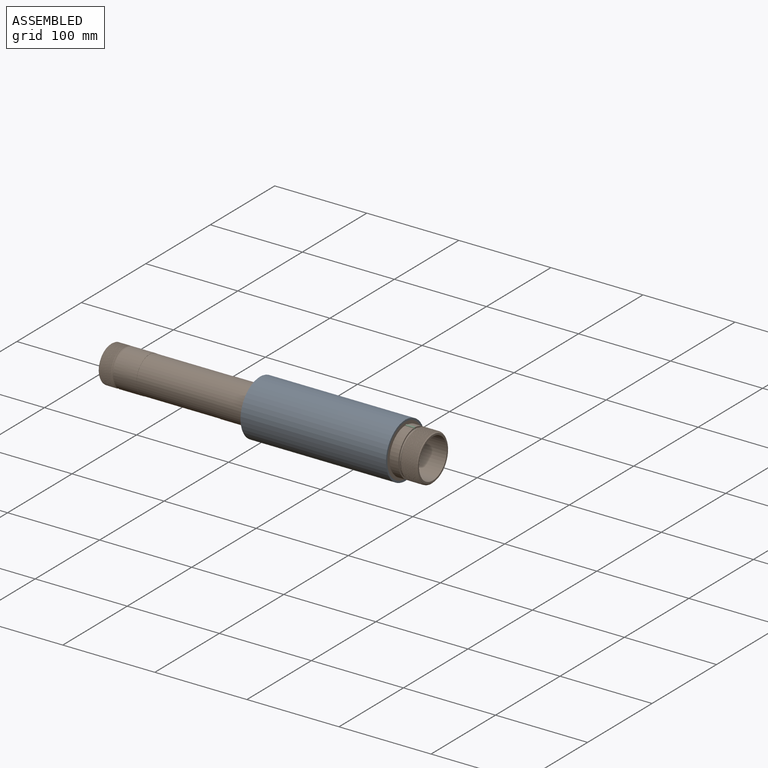
[diagram: assembled view]
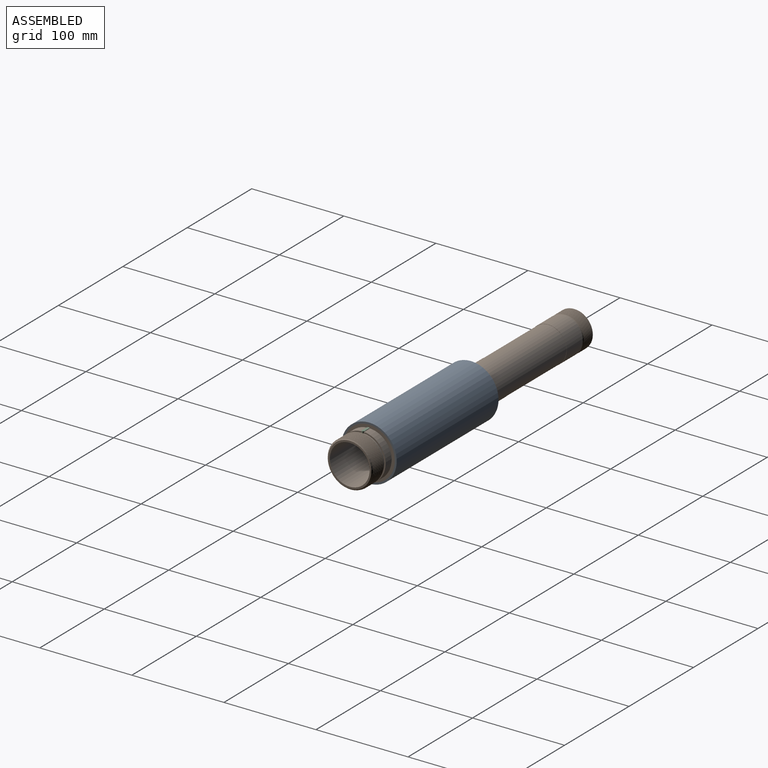
[diagram: assembled view, second angle]
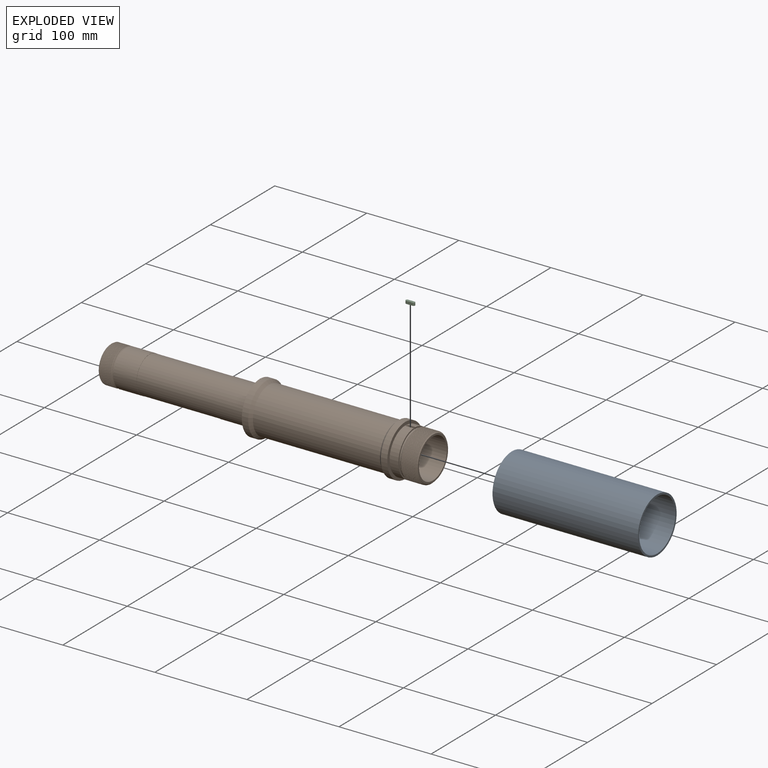
[diagram: exploded view]
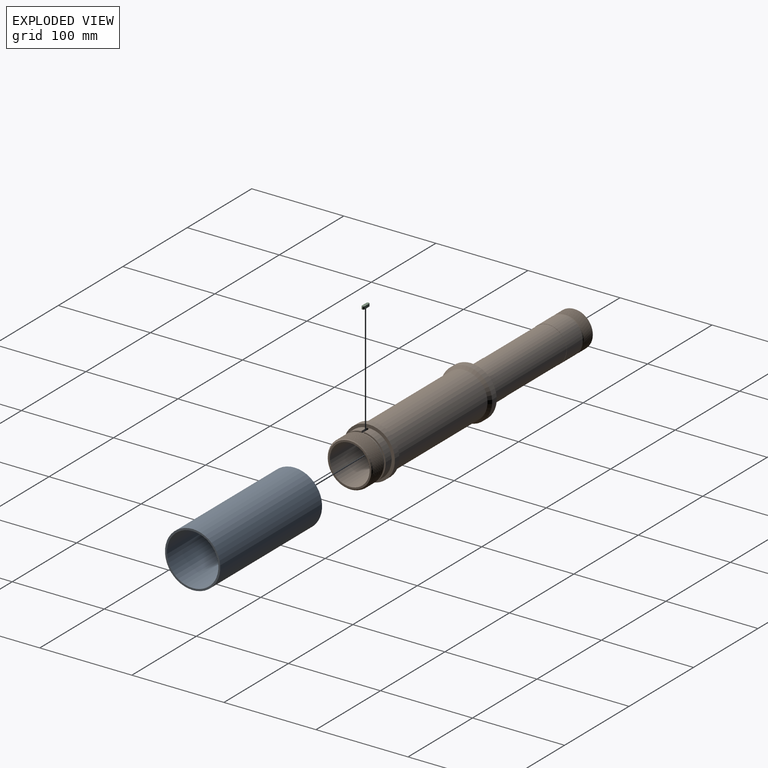
[diagram: exploded view, second angle]
ASSEMBLY  parts=3 mates=2
PART A: 4 faces, bbox 158x60x60 mm
  f0: plane 60x60mm, normal (-1,0,0), area 364.4mm2, adj f1,f3
  f1: cylinder r=28mm len=158mm, axis (-1,0,0), area 27796.8mm2, adj f0,f2
  f2: plane 60x60mm, normal (1,0,0), area 364.4mm2, adj f1,f3
  f3: cylinder r=30mm len=158mm, axis (-1,0,0), area 29782.3mm2, adj f0,f2
PART B: 53 faces, bbox 351.3x56x57.7 mm
  f0: plane 38x38mm, normal (1,0,0), area 518.4mm2, adj f1,f37
  f1: cylinder r=19mm len=38mm, axis (-1,0,0), area 238.8mm2, adj f0,f2
  f2: plane 42x42mm, normal (1,0,0), area 251.3mm2, adj f1,f3
  f3: cylinder r=21mm len=42mm, axis (-1,0,0), area 1583.4mm2, adj f2,f4
  f4: plane 43.2x43.2mm, normal (1,0,0), area 80.3mm2, adj f3,f5
  f5: cylinder r=21.6mm len=121mm, axis (-1,0,0), area 16421.7mm2, adj f4,f6
  f6: plane 47x47mm, normal (1,0,0), area 269.2mm2, adj f5,f38
  f7: cylinder r=25mm len=50mm, axis (-1,0,0), area 417.3mm2, adj f38,f39,f41,f42
  f8: cylinder r=23.5mm len=47mm, axis (-1,0,0), area 220.9mm2, adj f9,f40,f46
  f9: plane 50x49.98mm, normal (1,0,0), area 225.2mm2, adj f8,f10,f46
  f10: cylinder r=25mm len=50mm, axis (-1,0,0), area 1387.5mm2, adj f9,f11,f43,f44,f45,f46
  f11: plane 50x49.98mm, normal (-1,0,0), area 76.6mm2, adj f10,f12,f44
  f12: cylinder r=24.5mm len=49mm, axis (-1,0,0), area 153.4mm2, adj f11,f13,f44
  f13: plane 56x56mm, normal (1,0,0), area 577.3mm2, adj f12,f14
  f14: cylinder r=28mm len=56mm, axis (-1,0,0), area 1231.5mm2, adj f13,f15
  f15: cone r=25mm half-angle=45deg, axis (1,0,0), area 706.4mm2, adj f14,f16
  f16: cylinder r=25mm len=138mm, axis (-1,0,0), area 21677mm2, adj f15,f17
  f17: cone r=28mm half-angle=45deg, axis (-1,0,0), area 706.4mm2, adj f16,f18
  f18: cylinder r=28mm len=56mm, axis (-1,0,0), area 1231.5mm2, adj f17,f19
  f19: plane 56x56mm, normal (-1,0,0), area 1231.4mm2, adj f18,f20
  f20: cylinder r=19.8mm len=39.6mm, axis (-1,0,0), area 248.8mm2, adj f19,f21
  f21: plane 40x40mm, normal (1,0,0), area 25mm2, adj f20,f22
  f22: cylinder r=20mm len=40mm, axis (-1,0,0), area 4146.9mm2, adj f21,f23
  f23: plane 40x40mm, normal (-1,0,0), area 25mm2, adj f22,f24
  f24: cylinder r=19.8mm len=85mm, axis (-1,0,0), area 10574.6mm2, adj f23,f25
  f25: plane 40x40mm, normal (1,0,0), area 25mm2, adj f24,f26
  f26: cylinder r=20mm len=40mm, axis (-1,0,0), area 3141.6mm2, adj f25,f27
  f27: plane 40x40mm, normal (-1,0,0), area 181.4mm2, adj f26,f28
  f28: cylinder r=18.5mm len=37mm, axis (-1,0,0), area 174.4mm2, adj f27,f48
  f29: cylinder r=20mm len=40mm, axis (-1,0,0), area 93mm2, adj f48,f49,f51,f52
  f30: plane 37x37mm, normal (-1,0,0), area 271mm2, adj f31,f50
  f31: cylinder r=16mm len=32mm, axis (-1,0,0), area 301.6mm2, adj f30,f32
  f32: plane 33.7x33.7mm, normal (1,0,0), area 87.7mm2, adj f31,f33
  f33: cylinder r=16.85mm len=33.7mm, axis (-1,0,0), area 127mm2, adj f32,f34
  f34: plane 33.7x33.7mm, normal (-1,0,0), area 87.7mm2, adj f33,f35
  f35: cylinder r=16mm len=32mm, axis (-1,0,0), area 904.8mm2, adj f34,f36
  f36: plane 32x32mm, normal (-1,0,0), area 188.5mm2, adj f35,f37
  f37: cylinder r=14mm len=201.8mm, axis (-1,0,0), area 17751.3mm2, adj f0,f36
  f38: cone r=25mm half-angle=45deg, axis (-1,0,0), area 199.5mm2, adj f6,f7,f41,f42
  f39: cone r=23.5mm half-angle=45deg, axis (1,0,0), area 37.3mm2, adj f7,f40,f41,f42
  f40: cone r=23.5mm half-angle=45deg, axis (1,0,0), area 162.5mm2, adj f8,f39,f41
  f41: bspline ~57.74x50mm, area 2399.6mm2, adj f7,f38,f39,f40,f42
  f42: bspline ~57.74x50mm, area 2392.3mm2, adj f7,f38,f39,f41
  f43: plane 7x2.46mm, normal (0,-1,0), area 17.2mm2, adj f10,f44,f46,f47
  f44: cylinder r=1.5mm len=3mm, axis (0,0,-1), area 10.4mm2, adj f10,f11,f12,f43,f45,f47
  f45: plane 7x2.46mm, normal (0,1,0), area 17.2mm2, adj f10,f44,f46,f47
  f46: cylinder r=1.5mm len=3mm, axis (0,0,-1), area 7.9mm2, adj f8,f9,f10,f43,f45,f47
  f47: plane 10x3mm, normal (0,0,1), area 28.1mm2, adj f43,f44,f45,f46
  f48: cone r=20mm half-angle=45deg, axis (-1,0,0), area 158.2mm2, adj f28,f29,f51,f52
  f49: cone r=18.5mm half-angle=45deg, axis (1,0,0), area 29.8mm2, adj f29,f50,f51,f52
  f50: cone r=18.5mm half-angle=45deg, axis (1,0,0), area 128.2mm2, adj f30,f49,f52
  f51: bspline ~46.19x40mm, area 1537.8mm2, adj f29,f48,f49,f52
  f52: bspline ~46.19x40mm, area 1559.7mm2, adj f29,f48,f49,f50,f51
PART C: 6 faces, bbox 10x3x3 mm
  f0: plane 7x3mm, normal (0,1,0), area 21mm2, adj f1,f3,f4,f5
  f1: cylinder r=1.5mm len=3mm, axis (0,0,-1), area 14.1mm2, adj f0,f2,f4,f5
  f2: plane 7x3mm, normal (0,-1,0), area 21mm2, adj f1,f3,f4,f5
  f3: cylinder r=1.5mm len=3mm, axis (0,0,-1), area 14.1mm2, adj f0,f2,f4,f5
  f4: plane 10x3mm, normal (0,0,1), area 28.1mm2, adj f0,f1,f2,f3
  f5: plane 10x3mm, normal (0,0,-1), area 28.1mm2, adj f0,f1,f2,f3
PLACE A t=(100.15,48.32,-25.51)mm
PLACE B t=(-61.85,48.32,-25.51)mm
PLACE C t=(260.15,48.32,-3.01)mm
MATE fastened A.f1 <-> B.f1  axis (-1,0,0) through (258.15,48.32,-25.51)mm
MATE fastened C.f1 <-> B.f44  axis (0,0,-1) through (260.15,48.32,-3.01)mm
